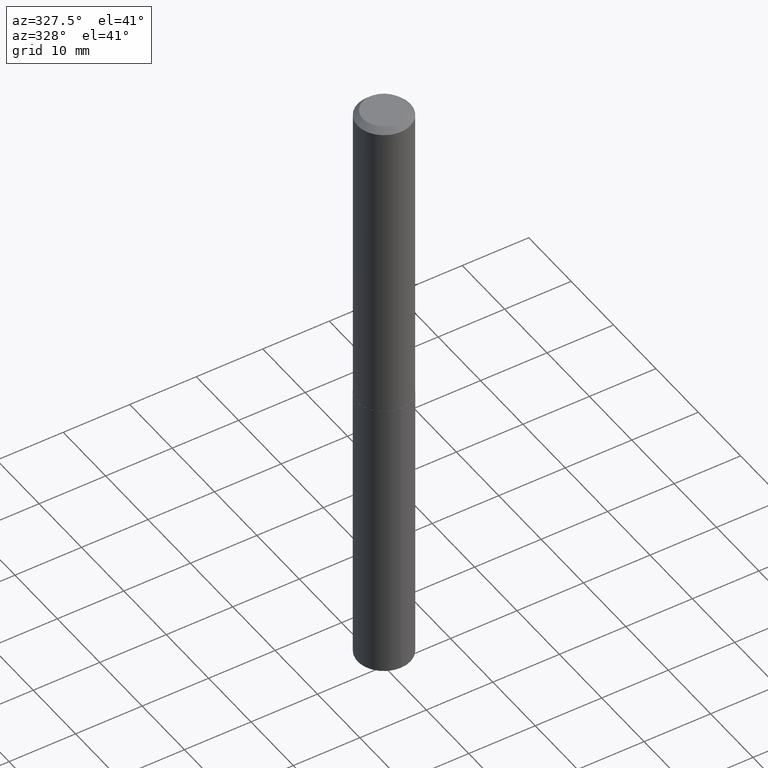
[diagram: clean part render]
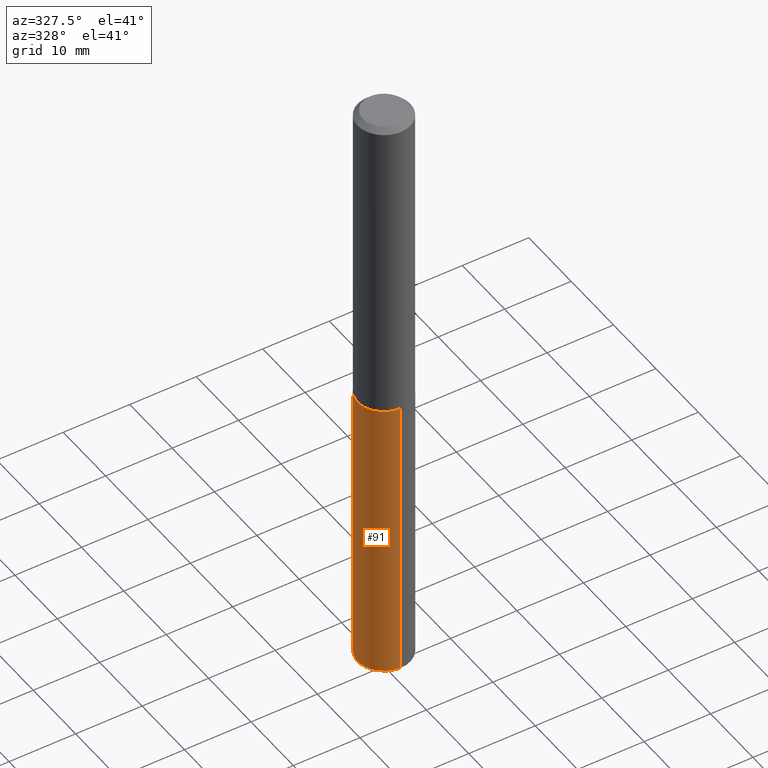
[diagram: same view with one face highlighted and labeled with its STEP entity id]
A machine part, auxiliary view. The second image highlights one B-rep face of the part: STEP entity #91.
In plain terms, the highlighted cylindrical surface (edge-blend (fillet) strip) has radius 3.9688 mm, axis along (-0, 0, 1).
Its self-contained STEP definition (entity closure, byte-faithful):
#4 = DIRECTION ( 'NONE',  ( -2.438279987139125498E-29, 3.501776136879202935E-15, 1.000000000000000000 ) ) ;
#26 = VERTEX_POINT ( 'NONE', #180 ) ;
#28 = CARTESIAN_POINT ( 'NONE',  ( 4.547104698220642775E-29, -6.492060401444945429E-15, -1.859400000000000164 ) ) ;
#32 = CIRCLE ( 'NONE', #306, 0.1562500000000000000 ) ;
#35 = CARTESIAN_POINT ( 'NONE',  ( 1.110223024625243907E-15, 0.1562499999999875100, -3.575734564237659452 ) ) ;
#45 = DIRECTION ( 'NONE',  ( -6.982962677686265133E-15, -1.000000000000000000, 3.496765431890256920E-15 ) ) ;
#48 = ORIENTED_EDGE ( 'NONE', *, *, #138, .F. ) ;
#50 = CARTESIAN_POINT ( 'NONE',  ( 8.732008917436479290E-29, -1.250227982139334463E-14, -3.575734564237659008 ) ) ;
#52 = CARTESIAN_POINT ( 'NONE',  ( -1.091087918388433617E-15, -0.1562500000000064948, -1.859399999999999498 ) ) ;
#54 = ORIENTED_EDGE ( 'NONE', *, *, #283, .F. ) ;
#56 = CARTESIAN_POINT ( 'NONE',  ( 1.110223024625201703E-15, 0.1562499999999935052, -1.859400000000000608 ) ) ;
#64 = VECTOR ( 'NONE', #4, 39.37007874015748143 ) ;
#85 = DIRECTION ( 'NONE',  ( -2.438279987139125498E-29, 3.501776136879202935E-15, 1.000000000000000000 ) ) ;
#90 = CYLINDRICAL_SURFACE ( 'NONE', #269, 0.1562500000000000000 ) ;
#91 = ADVANCED_FACE ( 'NONE', ( #161 ), #90, .T. ) ;
#104 = VECTOR ( 'NONE', #85, 39.37007874015748143 ) ;
#120 = CARTESIAN_POINT ( 'NONE',  ( 4.547104698220642775E-29, -6.492060401444945429E-15, -1.859400000000000164 ) ) ;
#126 = DIRECTION ( 'NONE',  ( -6.982962677686265133E-15, -1.000000000000000000, 3.496765431890256920E-15 ) ) ;
#138 = EDGE_CURVE ( 'NONE', #323, #26, #32, .T. ) ;
#155 = EDGE_CURVE ( 'NONE', #376, #345, #174, .T. ) ;
#161 = FACE_OUTER_BOUND ( 'NONE', #288, .T. ) ;
#174 = CIRCLE ( 'NONE', #298, 0.1562500000000000278 ) ;
#180 = CARTESIAN_POINT ( 'NONE',  ( -1.091087918388433617E-15, -0.1562500000000064948, -1.859399999999999498 ) ) ;
#202 = ORIENTED_EDGE ( 'NONE', *, *, #155, .T. ) ;
#239 = ORIENTED_EDGE ( 'NONE', *, *, #265, .T. ) ;
#247 = CARTESIAN_POINT ( 'NONE',  ( -1.091087918388391610E-15, -0.1562500000000125178, -3.575734564237658564 ) ) ;
#260 = DIRECTION ( 'NONE',  ( -2.438279987139125779E-29, 3.501776136879202935E-15, 1.000000000000000000 ) ) ;
#265 = EDGE_CURVE ( 'NONE', #345, #26, #300, .T. ) ;
#269 = AXIS2_PLACEMENT_3D ( 'NONE', #28, #275, #126 ) ;
#272 = LINE ( 'NONE', #56, #64 ) ;
#275 = DIRECTION ( 'NONE',  ( -2.438279987139125779E-29, 3.501776136879202935E-15, 1.000000000000000000 ) ) ;
#283 = EDGE_CURVE ( 'NONE', #376, #323, #272, .T. ) ;
#288 = EDGE_LOOP ( 'NONE', ( #54, #202, #239, #48 ) ) ;
#298 = AXIS2_PLACEMENT_3D ( 'NONE', #50, #260, #362 ) ;
#300 = LINE ( 'NONE', #52, #104 ) ;
#306 = AXIS2_PLACEMENT_3D ( 'NONE', #120, #350, #45 ) ;
#323 = VERTEX_POINT ( 'NONE', #336 ) ;
#336 = CARTESIAN_POINT ( 'NONE',  ( 1.110223024625243907E-15, 0.1562499999999935052, -1.859400000000000608 ) ) ;
#345 = VERTEX_POINT ( 'NONE', #247 ) ;
#350 = DIRECTION ( 'NONE',  ( -2.438279987139125779E-29, 3.501776136879202935E-15, 1.000000000000000000 ) ) ;
#362 = DIRECTION ( 'NONE',  ( -6.982962677686266711E-15, -1.000000000000000000, 3.496765431890256131E-15 ) ) ;
#376 = VERTEX_POINT ( 'NONE', #35 ) ;